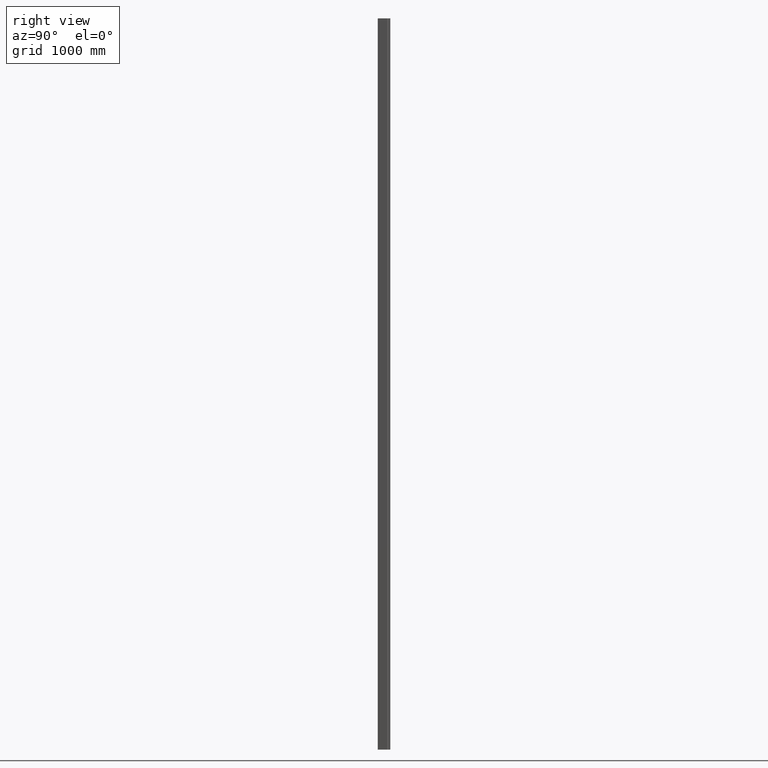
[diagram: clean part render]
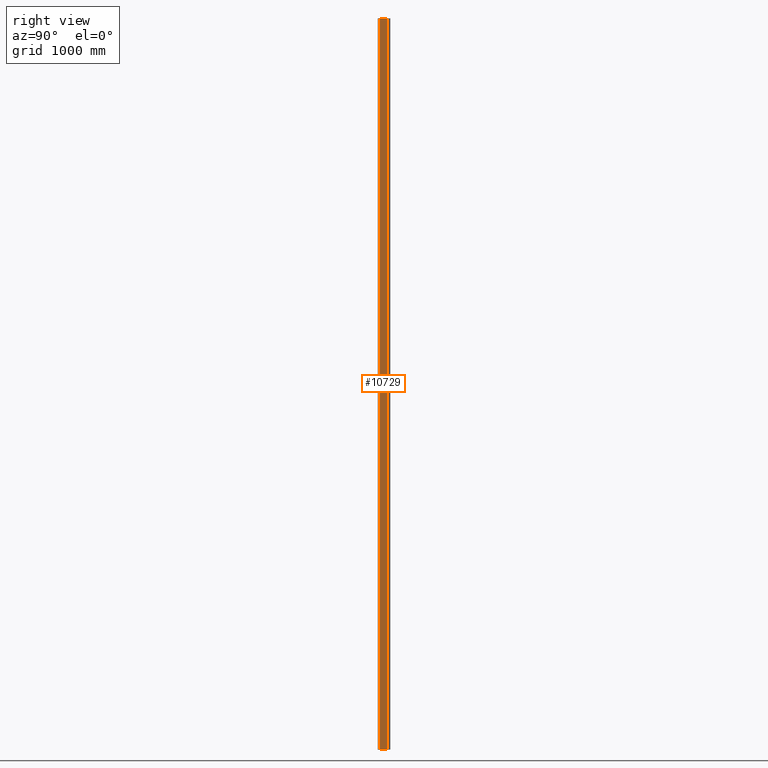
[diagram: same view with one face highlighted and labeled with its STEP entity id]
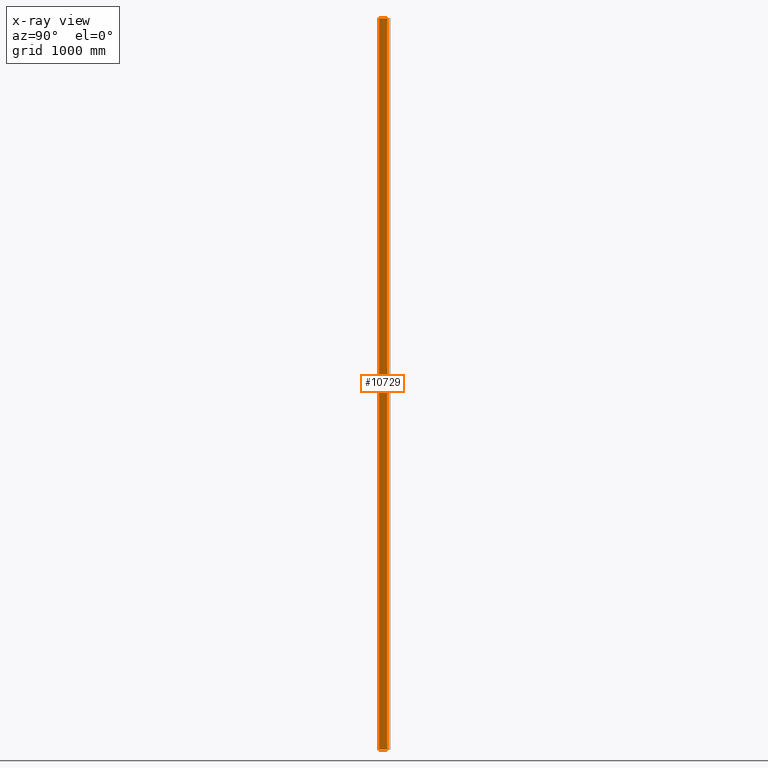
[diagram: x-ray of the same camera — body ghosted, the highlighted face saturated]
A machine part, right view. The second image highlights one B-rep face of the part: STEP entity #10729.
The next image is the same camera in x-ray: the body ghosted, the highlighted face saturated — about 0% of this face is hidden behind the body in this view.
In plain terms, the highlighted planar face has unit normal (-1, -0, 0).
Its self-contained STEP definition (entity closure, byte-faithful):
#112 = DIRECTION ( 'NONE',  ( -4.275350526016917600E-016, 1.000000000000000000, 0.0000000000000000000 ) ) ;
#346 = CARTESIAN_POINT ( 'NONE',  ( -18.37499999971201700, 76.92000000170041600, 3000.000000000000000 ) ) ;
#686 = LINE ( 'NONE', #2863, #9228 ) ;
#1132 = CARTESIAN_POINT ( 'NONE',  ( -18.37499999971198900, 11.99999999999977300, -3000.000000000000000 ) ) ;
#1952 = EDGE_CURVE ( 'NONE', #3572, #7923, #10771, .T. ) ;
#2328 = FACE_OUTER_BOUND ( 'NONE', #12464, .T. ) ;
#2863 = CARTESIAN_POINT ( 'NONE',  ( -18.37499999971201700, 76.92000000170041600, 3000.000000000000000 ) ) ;
#3309 = AXIS2_PLACEMENT_3D ( 'NONE', #7634, #4599, #3529 ) ;
#3529 = DIRECTION ( 'NONE',  ( 4.275350526016917100E-016, -1.000000000000000000, 0.0000000000000000000 ) ) ;
#3572 = VERTEX_POINT ( 'NONE', #12988 ) ;
#3816 = VECTOR ( 'NONE', #10169, 1000.000000000000000 ) ;
#3860 = ORIENTED_EDGE ( 'NONE', *, *, #1952, .T. ) ;
#3993 = CARTESIAN_POINT ( 'NONE',  ( -18.37499999971198900, 11.99999999999977300, 3000.000000000000000 ) ) ;
#4599 = DIRECTION ( 'NONE',  ( -1.000000000000000000, -4.275350526016917100E-016, 0.0000000000000000000 ) ) ;
#4960 = DIRECTION ( 'NONE',  ( -0.0000000000000000000, -0.0000000000000000000, -1.000000000000000000 ) ) ;
#5038 = LINE ( 'NONE', #10098, #6154 ) ;
#5585 = PLANE ( 'NONE',  #3309 ) ;
#6089 = ORIENTED_EDGE ( 'NONE', *, *, #9507, .F. ) ;
#6154 = VECTOR ( 'NONE', #11205, 1000.000000000000000 ) ;
#6227 = EDGE_CURVE ( 'NONE', #7923, #7138, #5038, .T. ) ;
#6411 = VERTEX_POINT ( 'NONE', #346 ) ;
#7138 = VERTEX_POINT ( 'NONE', #9377 ) ;
#7634 = CARTESIAN_POINT ( 'NONE',  ( -18.37499999971198500, -7.855956591432949800E-015, 3000.000000000000000 ) ) ;
#7923 = VERTEX_POINT ( 'NONE', #1132 ) ;
#8106 = VECTOR ( 'NONE', #112, 1000.000000000000000 ) ;
#8110 = ORIENTED_EDGE ( 'NONE', *, *, #11986, .F. ) ;
#8255 = CARTESIAN_POINT ( 'NONE',  ( -18.37499999971198500, -7.855956591432949800E-015, 3000.000000000000000 ) ) ;
#8873 = LINE ( 'NONE', #8255, #8106 ) ;
#9228 = VECTOR ( 'NONE', #4960, 1000.000000000000000 ) ;
#9377 = CARTESIAN_POINT ( 'NONE',  ( -18.37499999971201700, 76.92000000170041600, -3000.000000000000000 ) ) ;
#9507 = EDGE_CURVE ( 'NONE', #6411, #7138, #686, .T. ) ;
#10098 = CARTESIAN_POINT ( 'NONE',  ( -18.37499999971198500, -7.855956591432949800E-015, -3000.000000000000000 ) ) ;
#10106 = ORIENTED_EDGE ( 'NONE', *, *, #6227, .T. ) ;
#10169 = DIRECTION ( 'NONE',  ( -0.0000000000000000000, -0.0000000000000000000, -1.000000000000000000 ) ) ;
#10729 = ADVANCED_FACE ( 'NONE', ( #2328 ), #5585, .F. ) ;
#10771 = LINE ( 'NONE', #3993, #3816 ) ;
#11205 = DIRECTION ( 'NONE',  ( -4.275350526016917600E-016, 1.000000000000000000, 0.0000000000000000000 ) ) ;
#11986 = EDGE_CURVE ( 'NONE', #3572, #6411, #8873, .T. ) ;
#12464 = EDGE_LOOP ( 'NONE', ( #10106, #6089, #8110, #3860 ) ) ;
#12988 = CARTESIAN_POINT ( 'NONE',  ( -18.37499999971198900, 11.99999999999977300, 3000.000000000000000 ) ) ;